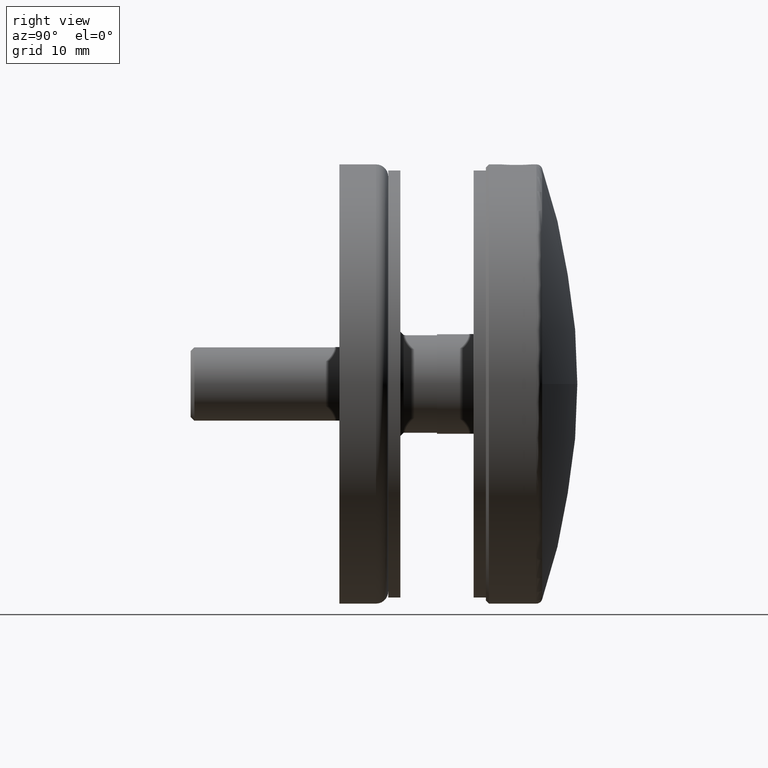
[diagram: clean part render]
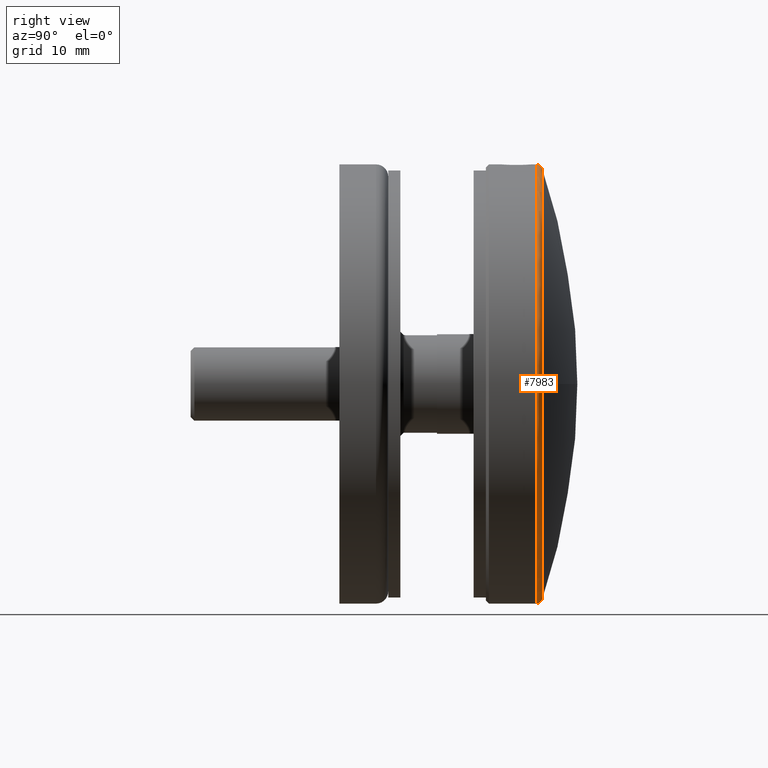
[diagram: same view with one face highlighted and labeled with its STEP entity id]
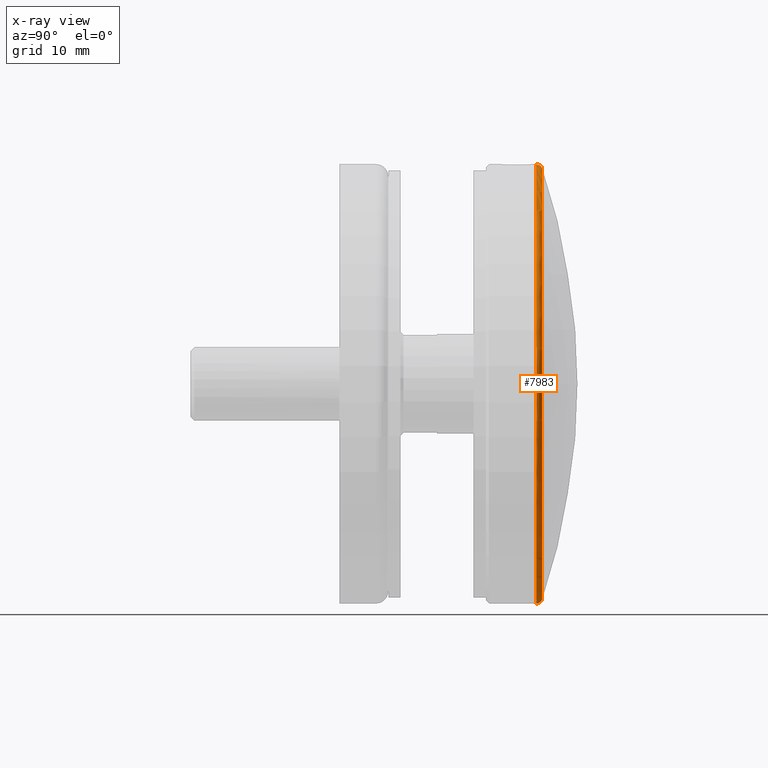
[diagram: x-ray of the same camera — body ghosted, the highlighted face saturated]
A machine part, right view. The second image highlights one B-rep face of the part: STEP entity #7983.
The next image is the same camera in x-ray: the body ghosted, the highlighted face saturated — about 0% of this face is hidden behind the body in this view.
In plain terms, the highlighted toroidal blend (fillet) surface has major radius 35 mm and minor (blend) radius 1 mm.
Its self-contained STEP definition (entity closure, byte-faithful):
#226 = VERTEX_POINT ( 'NONE', #2477 ) ;
#429 = VERTEX_POINT ( 'NONE', #4263 ) ;
#480 = FACE_OUTER_BOUND ( 'NONE', #4426, .T. ) ;
#802 = ORIENTED_EDGE ( 'NONE', *, *, #1750, .T. ) ;
#832 = AXIS2_PLACEMENT_3D ( 'NONE', #5208, #2790, #1671 ) ;
#1671 = DIRECTION ( 'NONE',  ( 0.000000000000000000, 0.000000000000000000, -1.000000000000000000 ) ) ;
#1750 = EDGE_CURVE ( 'NONE', #429, #9626, #11089, .T. ) ;
#2477 = CARTESIAN_POINT ( 'NONE',  ( 0.000000000000000000, 8.283268073071045734, -36.00000000000000711 ) ) ;
#2790 = DIRECTION ( 'NONE',  ( -0.000000000000000000, -1.000000000000000000, -0.000000000000000000 ) ) ;
#3325 = DIRECTION ( 'NONE',  ( 0.000000000000000000, 0.000000000000000000, -1.000000000000000000 ) ) ;
#3376 = CIRCLE ( 'NONE', #6343, 1.000000000000000888 ) ;
#3381 = DIRECTION ( 'NONE',  ( 0.000000000000000000, 0.000000000000000000, 1.000000000000000000 ) ) ;
#3489 = DIRECTION ( 'NONE',  ( -1.000000000000000000, 0.000000000000000000, 0.000000000000000000 ) ) ;
#3707 = EDGE_CURVE ( 'NONE', #6605, #4988, #3376, .T. ) ;
#4165 = CIRCLE ( 'NONE', #9154, 1.000000000000000888 ) ;
#4263 = CARTESIAN_POINT ( 'NONE',  ( 0.000000000000000000, 9.231297782826233700, -35.31818181818182723 ) ) ;
#4426 = EDGE_LOOP ( 'NONE', ( #7402, #5164, #8109, #14081, #802 ) ) ;
#4589 = DIRECTION ( 'NONE',  ( 0.000000000000000000, 0.000000000000000000, -1.000000000000000000 ) ) ;
#4988 = VERTEX_POINT ( 'NONE', #12171 ) ;
#5164 = ORIENTED_EDGE ( 'NONE', *, *, #3707, .T. ) ;
#5208 = CARTESIAN_POINT ( 'NONE',  ( 0.000000000000000000, 8.283268073071045734, 0.000000000000000000 ) ) ;
#5632 = CARTESIAN_POINT ( 'NONE',  ( 0.000000000000000000, 8.283268073071045734, 0.000000000000000000 ) ) ;
#5795 = CARTESIAN_POINT ( 'NONE',  ( 35.31818181818183433, 9.231297782826226594, 0.000000000000000000 ) ) ;
#5828 = DIRECTION ( 'NONE',  ( -0.000000000000000000, -1.000000000000000000, -0.000000000000000000 ) ) ;
#6322 = TOROIDAL_SURFACE ( 'NONE', #12761, 35.00000000000000000, 1.000000000000003553 ) ;
#6343 = AXIS2_PLACEMENT_3D ( 'NONE', #12471, #14909, #7612 ) ;
#6440 = AXIS2_PLACEMENT_3D ( 'NONE', #8143, #12936, #4589 ) ;
#6605 = VERTEX_POINT ( 'NONE', #13503 ) ;
#6969 = DIRECTION ( 'NONE',  ( 0.000000000000000000, 0.000000000000000000, -1.000000000000000000 ) ) ;
#6994 = DIRECTION ( 'NONE',  ( -0.000000000000000000, -1.000000000000000000, -0.000000000000000000 ) ) ;
#7325 = EDGE_CURVE ( 'NONE', #429, #226, #4165, .T. ) ;
#7402 = ORIENTED_EDGE ( 'NONE', *, *, #9828, .T. ) ;
#7612 = DIRECTION ( 'NONE',  ( -1.224646799147357151E-16, 0.000000000000000000, -1.000000000000000000 ) ) ;
#7983 = ADVANCED_FACE ( 'NONE', ( #480 ), #6322, .T. ) ;
#8109 = ORIENTED_EDGE ( 'NONE', *, *, #8165, .F. ) ;
#8143 = CARTESIAN_POINT ( 'NONE',  ( 0.000000000000000000, 9.231297782826233700, 0.000000000000000000 ) ) ;
#8165 = EDGE_CURVE ( 'NONE', #226, #4988, #9314, .T. ) ;
#8689 = AXIS2_PLACEMENT_3D ( 'NONE', #10590, #5828, #6969 ) ;
#9154 = AXIS2_PLACEMENT_3D ( 'NONE', #11762, #3489, #3381 ) ;
#9314 = CIRCLE ( 'NONE', #832, 36.00000000000000711 ) ;
#9626 = VERTEX_POINT ( 'NONE', #5795 ) ;
#9828 = EDGE_CURVE ( 'NONE', #9626, #6605, #13968, .T. ) ;
#10590 = CARTESIAN_POINT ( 'NONE',  ( 0.000000000000000000, 9.231297782826233700, 0.000000000000000000 ) ) ;
#11089 = CIRCLE ( 'NONE', #6440, 35.31818181818182723 ) ;
#11762 = CARTESIAN_POINT ( 'NONE',  ( 0.000000000000000000, 8.283268073071045734, -35.00000000000000000 ) ) ;
#12171 = CARTESIAN_POINT ( 'NONE',  ( 4.408728476930471644E-15, 8.283268073071045734, 36.00000000000000711 ) ) ;
#12471 = CARTESIAN_POINT ( 'NONE',  ( 4.286263797015736496E-15, 8.283268073071045734, 35.00000000000000000 ) ) ;
#12761 = AXIS2_PLACEMENT_3D ( 'NONE', #5632, #6994, #3325 ) ;
#12936 = DIRECTION ( 'NONE',  ( -0.000000000000000000, -1.000000000000000000, -0.000000000000000000 ) ) ;
#13503 = CARTESIAN_POINT ( 'NONE',  ( 4.366979154232267126E-15, 9.231297782826233700, 35.31818181818182723 ) ) ;
#13968 = CIRCLE ( 'NONE', #8689, 35.31818181818182723 ) ;
#14081 = ORIENTED_EDGE ( 'NONE', *, *, #7325, .F. ) ;
#14909 = DIRECTION ( 'NONE',  ( 1.000000000000000000, 0.000000000000000000, -1.224646799147353207E-16 ) ) ;